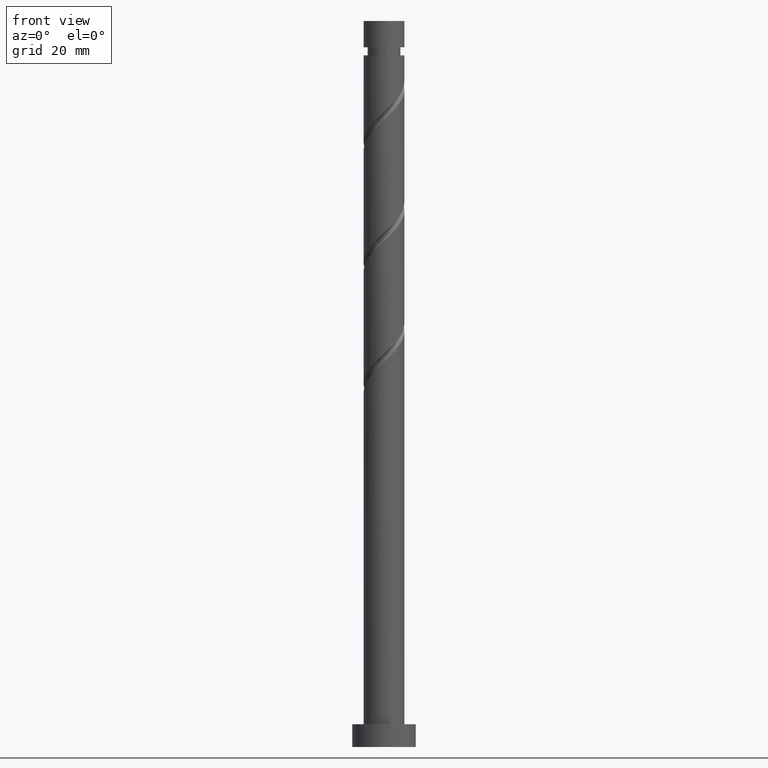
[diagram: clean part render]
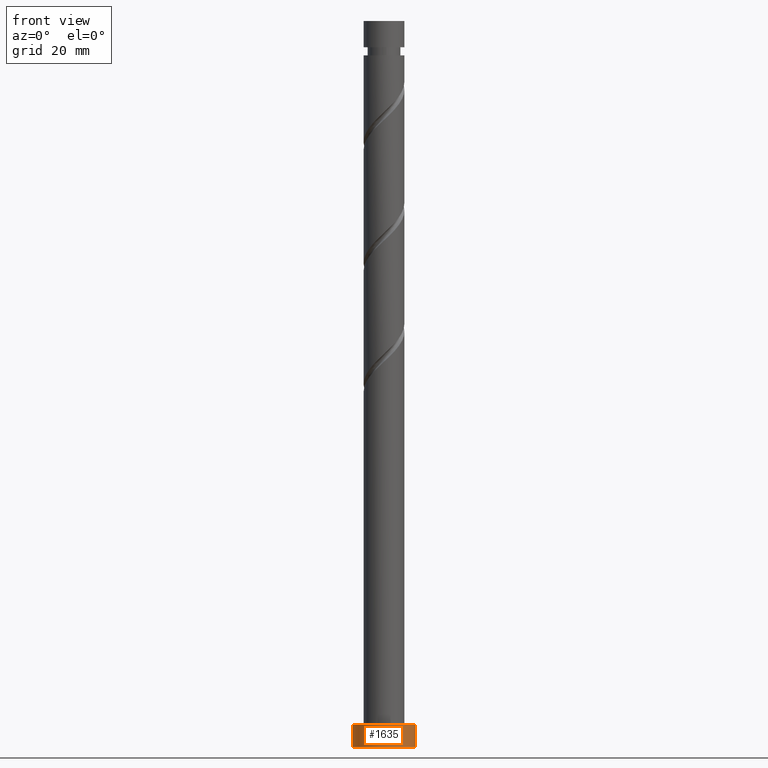
[diagram: same view with one face highlighted and labeled with its STEP entity id]
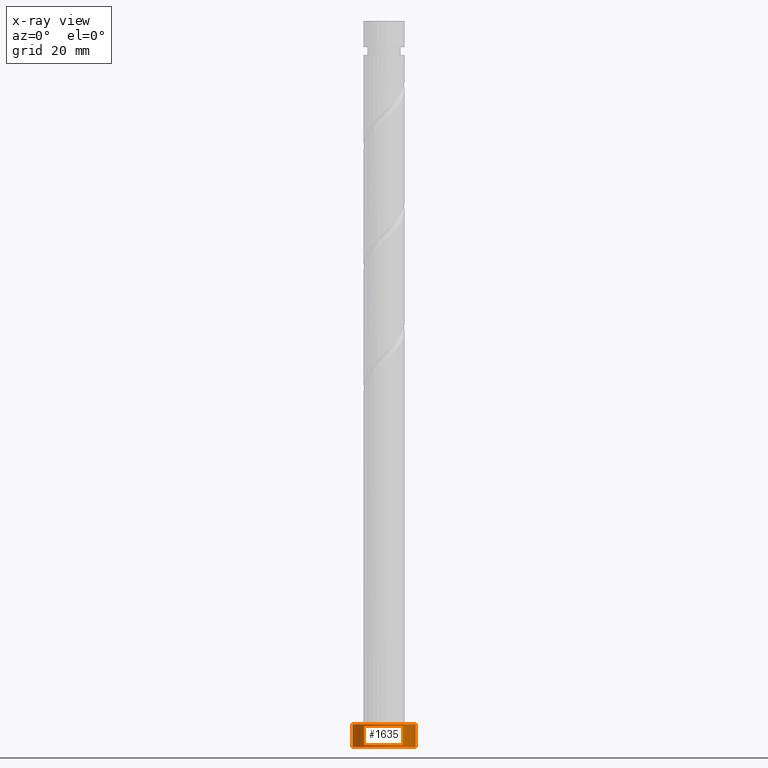
[diagram: x-ray of the same camera — body ghosted, the highlighted face saturated]
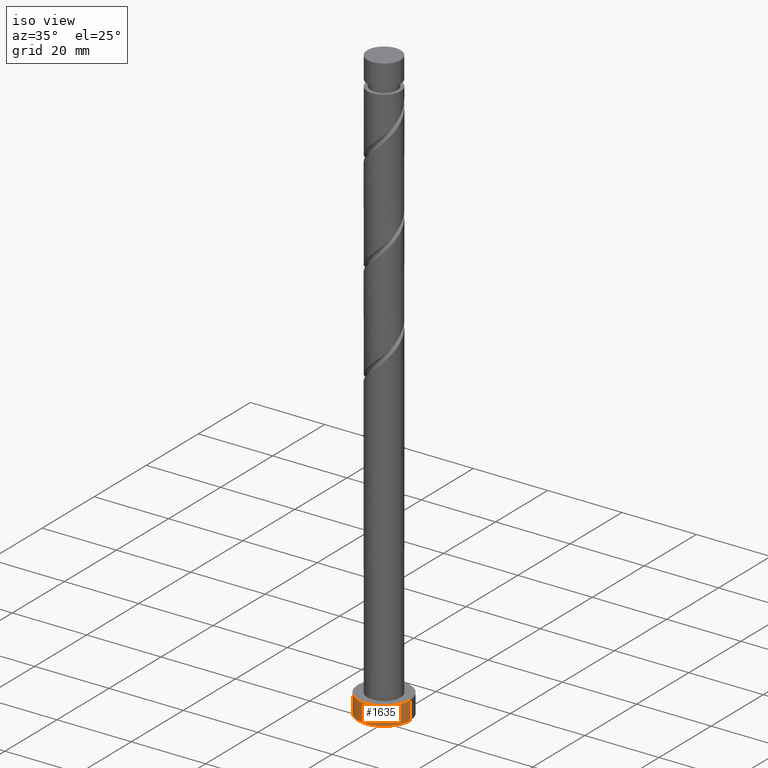
[diagram: same view with one face highlighted and labeled with its STEP entity id]
A machine part, front view. The second image highlights one B-rep face of the part: STEP entity #1635.
The next image is the same camera in x-ray: the body ghosted, the highlighted face saturated — about 0% of this face is hidden behind the body in this view.
A second angle (iso view) of the same face is appended — the face is thin or edge-on in the first view.
In plain terms, the highlighted cylindrical surface (edge-blend (fillet) strip) has radius 7 mm, axis along (-0, -0, -1).
Its self-contained STEP definition (entity closure, byte-faithful):
#1 = FACE_OUTER_BOUND ( 'NONE', #298, .T. ) ;
#7 = VERTEX_POINT ( 'NONE', #1610 ) ;
#26 = AXIS2_PLACEMENT_3D ( 'NONE', #969, #225, #474 ) ;
#30 = LINE ( 'NONE', #1415, #1607 ) ;
#116 = EDGE_CURVE ( 'NONE', #867, #1551, #30, .T. ) ;
#146 = VECTOR ( 'NONE', #1268, 1000.000000000000000 ) ;
#150 = CARTESIAN_POINT ( 'NONE',  ( 0.000000000000000000, 0.000000000000000000, 0.000000000000000000 ) ) ;
#151 = CARTESIAN_POINT ( 'NONE',  ( 0.000000000000000000, 0.000000000000000000, 5.000000000000000000 ) ) ;
#225 = DIRECTION ( 'NONE',  ( 0.000000000000000000, 0.000000000000000000, 1.000000000000000000 ) ) ;
#236 = CIRCLE ( 'NONE', #26, 7.000000000000000000 ) ;
#265 = CYLINDRICAL_SURFACE ( 'NONE', #1004, 7.000000000000000000 ) ;
#298 = EDGE_LOOP ( 'NONE', ( #567, #1185, #807, #409 ) ) ;
#307 = EDGE_CURVE ( 'NONE', #7, #1043, #980, .T. ) ;
#344 = AXIS2_PLACEMENT_3D ( 'NONE', #150, #1426, #1265 ) ;
#366 = CIRCLE ( 'NONE', #344, 7.000000000000000000 ) ;
#409 = ORIENTED_EDGE ( 'NONE', *, *, #1085, .T. ) ;
#429 = DIRECTION ( 'NONE',  ( -0.000000000000000000, -0.000000000000000000, -1.000000000000000000 ) ) ;
#474 = DIRECTION ( 'NONE',  ( 1.000000000000000000, 0.000000000000000000, 0.000000000000000000 ) ) ;
#538 = DIRECTION ( 'NONE',  ( -0.000000000000000000, -0.000000000000000000, -1.000000000000000000 ) ) ;
#567 = ORIENTED_EDGE ( 'NONE', *, *, #116, .F. ) ;
#807 = ORIENTED_EDGE ( 'NONE', *, *, #307, .T. ) ;
#867 = VERTEX_POINT ( 'NONE', #904 ) ;
#895 = CARTESIAN_POINT ( 'NONE',  ( -7.000000000000000000, 0.000000000000000000, 0.000000000000000000 ) ) ;
#904 = CARTESIAN_POINT ( 'NONE',  ( 7.000000000000000000, 8.572527594031473190E-16, 5.000000000000000000 ) ) ;
#969 = CARTESIAN_POINT ( 'NONE',  ( 0.000000000000000000, 0.000000000000000000, 5.000000000000000000 ) ) ;
#980 = LINE ( 'NONE', #1363, #146 ) ;
#1004 = AXIS2_PLACEMENT_3D ( 'NONE', #151, #538, #1039 ) ;
#1039 = DIRECTION ( 'NONE',  ( -1.000000000000000000, 0.000000000000000000, 0.000000000000000000 ) ) ;
#1043 = VERTEX_POINT ( 'NONE', #895 ) ;
#1085 = EDGE_CURVE ( 'NONE', #1043, #1551, #366, .T. ) ;
#1172 = CARTESIAN_POINT ( 'NONE',  ( 7.000000000000000000, 8.572527594031473190E-16, 0.000000000000000000 ) ) ;
#1185 = ORIENTED_EDGE ( 'NONE', *, *, #1260, .F. ) ;
#1260 = EDGE_CURVE ( 'NONE', #7, #867, #236, .T. ) ;
#1265 = DIRECTION ( 'NONE',  ( 1.000000000000000000, 0.000000000000000000, 0.000000000000000000 ) ) ;
#1268 = DIRECTION ( 'NONE',  ( -0.000000000000000000, -0.000000000000000000, -1.000000000000000000 ) ) ;
#1363 = CARTESIAN_POINT ( 'NONE',  ( -7.000000000000000000, 0.000000000000000000, 5.000000000000000000 ) ) ;
#1415 = CARTESIAN_POINT ( 'NONE',  ( 7.000000000000000000, 8.572527594031473190E-16, 5.000000000000000000 ) ) ;
#1426 = DIRECTION ( 'NONE',  ( 0.000000000000000000, 0.000000000000000000, 1.000000000000000000 ) ) ;
#1551 = VERTEX_POINT ( 'NONE', #1172 ) ;
#1607 = VECTOR ( 'NONE', #429, 1000.000000000000000 ) ;
#1610 = CARTESIAN_POINT ( 'NONE',  ( -7.000000000000000000, 0.000000000000000000, 5.000000000000000000 ) ) ;
#1635 = ADVANCED_FACE ( 'NONE', ( #1 ), #265, .T. ) ;